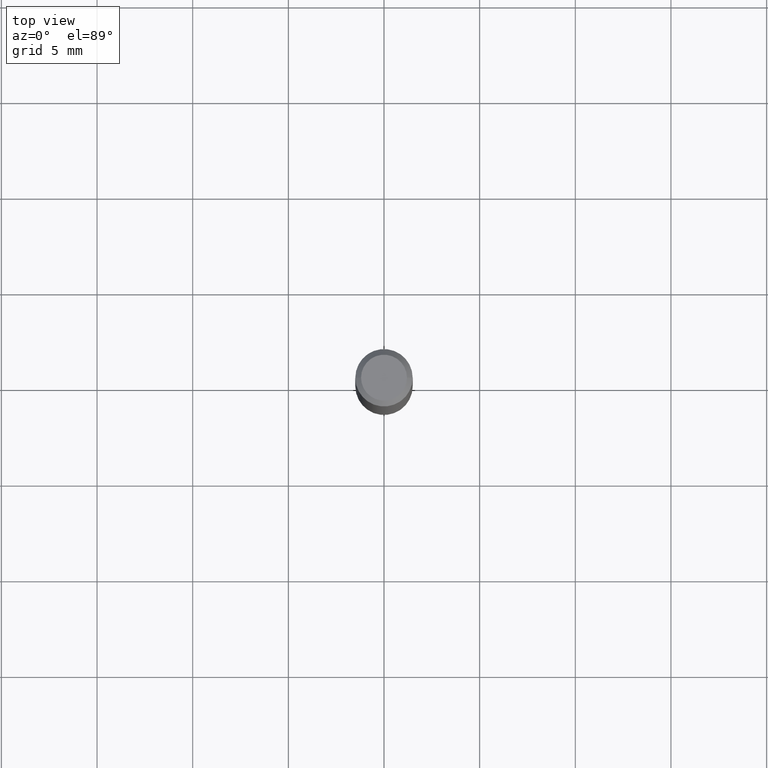
[diagram: clean part render]
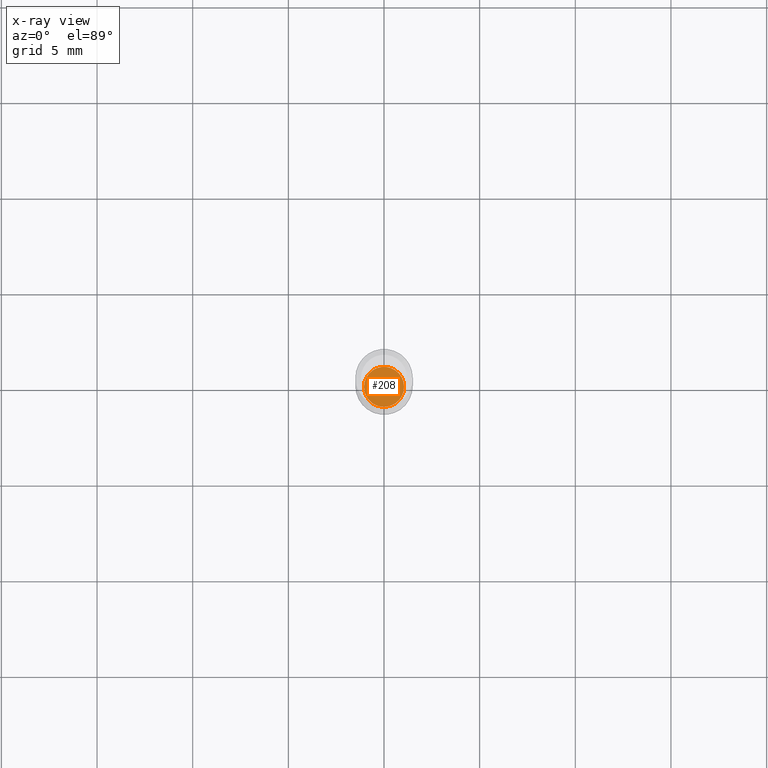
[diagram: x-ray — body ghosted, one internal face saturated and labeled with its STEP entity id]
A machine part, top view, then the same camera in x-ray: the body is ghosted and one INTERNAL B-rep face — a face not visible from any outside direction — is saturated and labeled: STEP entity #208.
In plain terms, the highlighted planar face has unit normal (-0, 0, 1).
Its self-contained STEP definition (entity closure, byte-faithful):
#7 = DIRECTION ( 'NONE',  ( -2.445468806185136597E-29, 3.491481338843145583E-15, 1.000000000000000000 ) ) ;
#38 = DIRECTION ( 'NONE',  ( 1.000000000000000000, -6.982962677686267499E-15, 0.000000000000000000 ) ) ;
#71 = EDGE_CURVE ( 'NONE', #414, #135, #291, .T. ) ;
#74 = EDGE_CURVE ( 'NONE', #135, #414, #361, .T. ) ;
#103 = AXIS2_PLACEMENT_3D ( 'NONE', #480, #407, #177 ) ;
#116 = DIRECTION ( 'NONE',  ( -2.445468806185136597E-29, 3.491481338843145583E-15, 1.000000000000000000 ) ) ;
#135 = VERTEX_POINT ( 'NONE', #168 ) ;
#151 = ORIENTED_EDGE ( 'NONE', *, *, #74, .F. ) ;
#168 = CARTESIAN_POINT ( 'NONE',  ( -0.04125000000000000194, -3.525678219688670183E-15, -1.094500000000000028 ) ) ;
#177 = DIRECTION ( 'NONE',  ( 1.000000000000000000, -6.982962677686265922E-15, 4.876176775795935793E-29 ) ) ;
#187 = ORIENTED_EDGE ( 'NONE', *, *, #71, .F. ) ;
#208 = ADVANCED_FACE ( 'NONE', ( #446 ), #252, .F. ) ;
#252 = PLANE ( 'NONE',  #103 ) ;
#267 = DIRECTION ( 'NONE',  ( 1.000000000000000000, -6.982962677686267499E-15, 0.000000000000000000 ) ) ;
#269 = CARTESIAN_POINT ( 'NONE',  ( 2.676565608369632355E-29, -3.821426325363822773E-15, -1.094500000000000028 ) ) ;
#278 = CARTESIAN_POINT ( 'NONE',  ( 0.04125000000000000194, -4.109473535818381906E-15, -1.094500000000000028 ) ) ;
#289 = EDGE_LOOP ( 'NONE', ( #187, #151 ) ) ;
#291 = CIRCLE ( 'NONE', #409, 0.04125000000000000194 ) ;
#299 = CARTESIAN_POINT ( 'NONE',  ( 2.676565608369632355E-29, -3.821426325363822773E-15, -1.094500000000000028 ) ) ;
#361 = CIRCLE ( 'NONE', #483, 0.04125000000000000194 ) ;
#407 = DIRECTION ( 'NONE',  ( -2.438088387897960049E-29, 3.491481338843145188E-15, 1.000000000000000000 ) ) ;
#409 = AXIS2_PLACEMENT_3D ( 'NONE', #299, #7, #38 ) ;
#414 = VERTEX_POINT ( 'NONE', #278 ) ;
#446 = FACE_OUTER_BOUND ( 'NONE', #289, .T. ) ;
#480 = CARTESIAN_POINT ( 'NONE',  ( 1.457641926409248157E-30, -7.445677996958410596E-15, -1.094500000000000028 ) ) ;
#483 = AXIS2_PLACEMENT_3D ( 'NONE', #269, #116, #267 ) ;